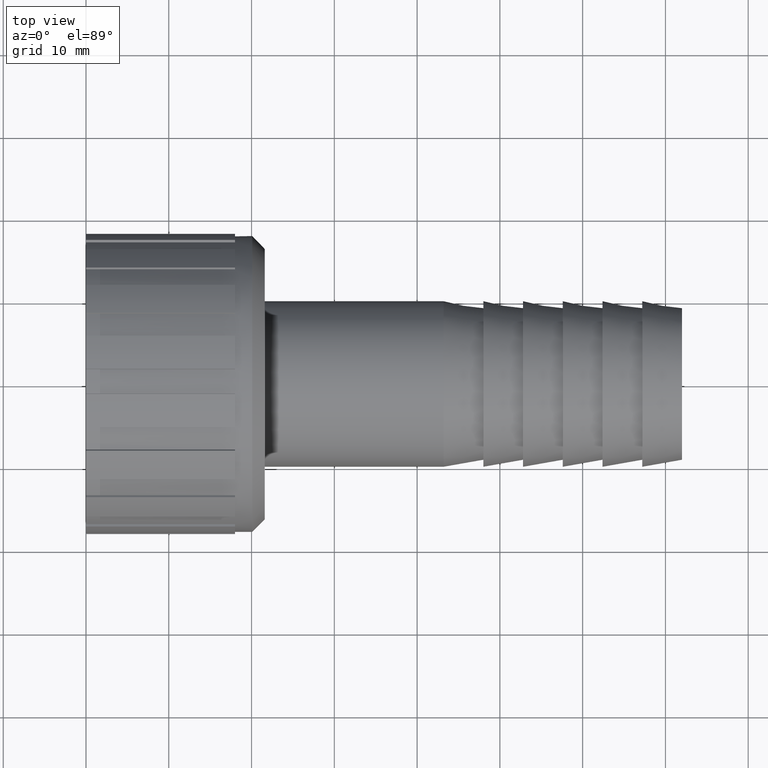
[diagram: clean part render]
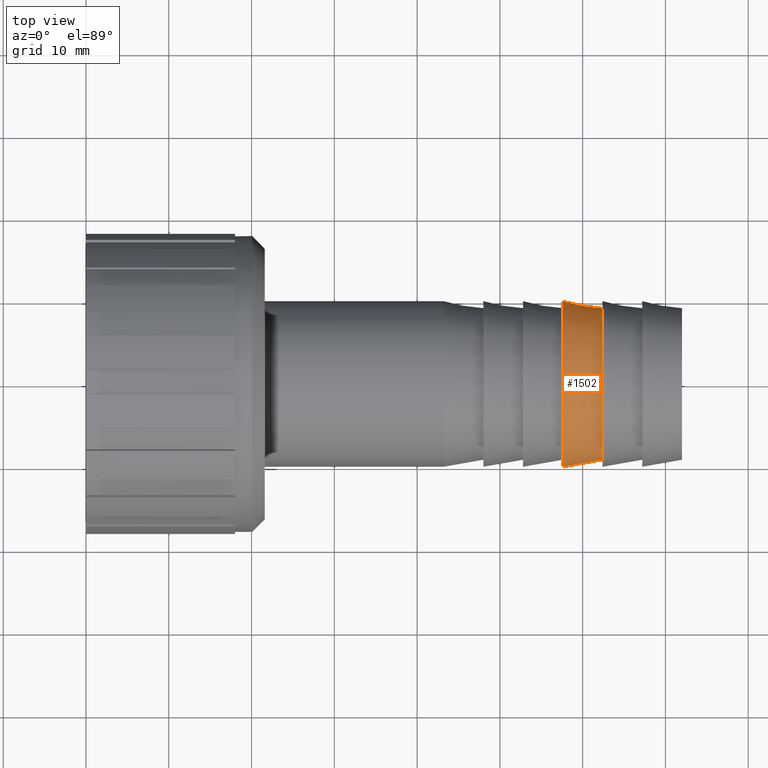
[diagram: same view with one face highlighted and labeled with its STEP entity id]
A machine part, top view. The second image highlights one B-rep face of the part: STEP entity #1502.
In plain terms, the highlighted conical surface has half-angle 10 deg.
Its self-contained STEP definition (entity closure, byte-faithful):
#18=CONICAL_SURFACE('',#1664,9.57681524629968,9.99999999999998);
#54=FACE_BOUND('',#318,.T.);
#137=CIRCLE('',#1663,9.15363049259937);
#138=CIRCLE('',#1665,10.);
#221=FACE_OUTER_BOUND('',#317,.T.);
#317=EDGE_LOOP('',(#1353));
#318=EDGE_LOOP('',(#1354));
#728=VERTEX_POINT('',#2562);
#729=VERTEX_POINT('',#2565);
#939=EDGE_CURVE('',#728,#728,#137,.T.);
#940=EDGE_CURVE('',#729,#729,#138,.T.);
#1353=ORIENTED_EDGE('',*,*,#939,.T.);
#1354=ORIENTED_EDGE('',*,*,#940,.F.);
#1502=ADVANCED_FACE('',(#221,#54),#18,.T.);
#1663=AXIS2_PLACEMENT_3D('',#2563,#2111,#2112);
#1664=AXIS2_PLACEMENT_3D('',#2564,#2113,#2114);
#1665=AXIS2_PLACEMENT_3D('',#2566,#2115,#2116);
#2111=DIRECTION('center_axis',(-1.,0.,0.));
#2112=DIRECTION('ref_axis',(0.,0.,1.));
#2113=DIRECTION('center_axis',(-1.,0.,0.));
#2114=DIRECTION('ref_axis',(0.,-1.,0.));
#2115=DIRECTION('center_axis',(-1.,0.,0.));
#2116=DIRECTION('ref_axis',(0.,0.,1.));
#2562=CARTESIAN_POINT('',(62.4,-9.15363049259937,0.));
#2563=CARTESIAN_POINT('Origin',(62.4,0.,0.));
#2564=CARTESIAN_POINT('Origin',(60.,0.,0.));
#2565=CARTESIAN_POINT('',(57.6,-10.,0.));
#2566=CARTESIAN_POINT('Origin',(57.6,0.,0.));